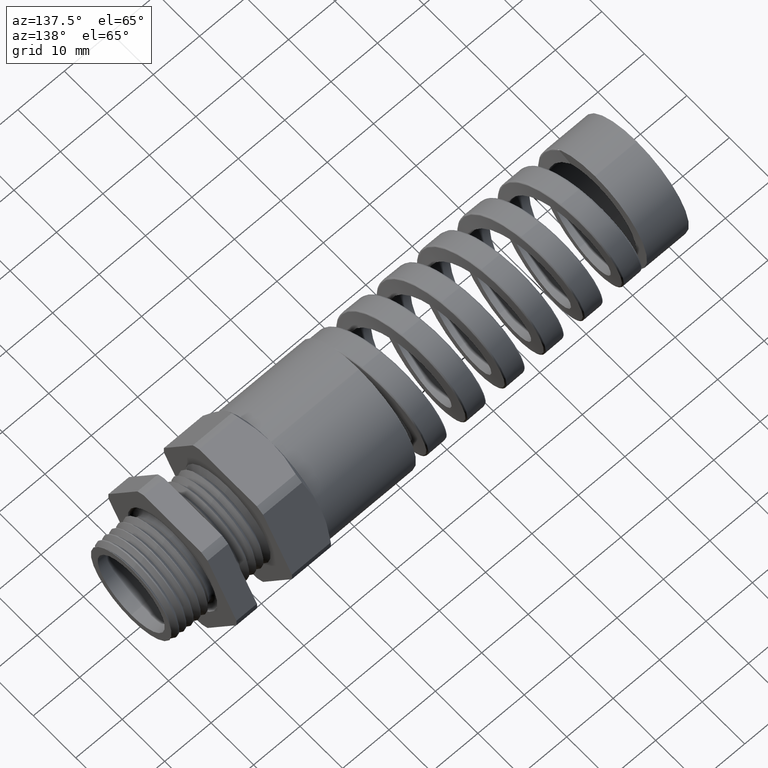
[diagram: clean part render]
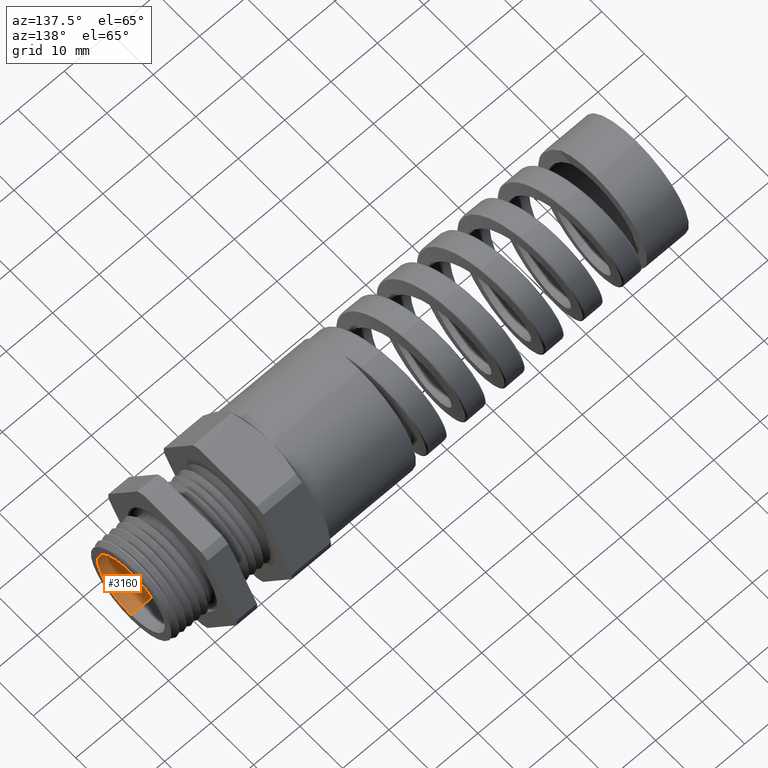
[diagram: same view with one face highlighted and labeled with its STEP entity id]
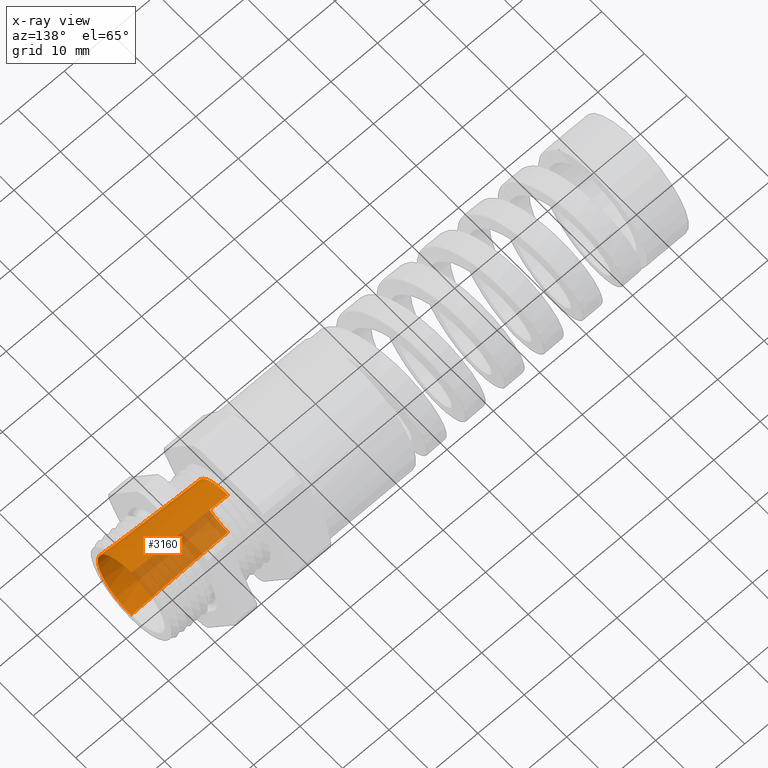
[diagram: x-ray of the same camera — body ghosted, the highlighted face saturated]
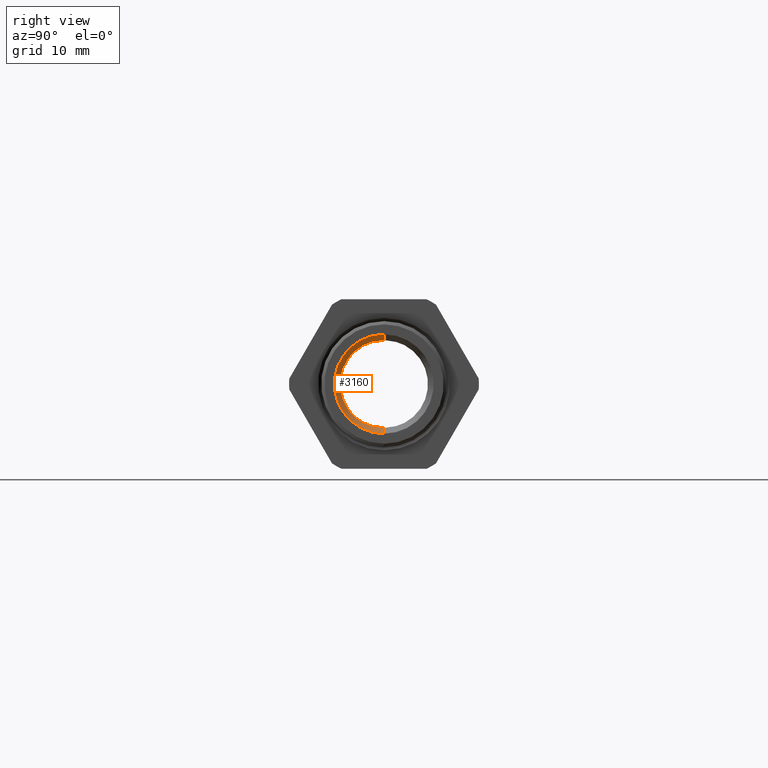
[diagram: same view with one face highlighted and labeled with its STEP entity id]
A machine part, auxiliary view. The second image highlights one B-rep face of the part: STEP entity #3160.
The next image is the same camera in x-ray: the body ghosted, the highlighted face saturated — about 36% of this face is hidden behind the body in this view.
A second angle (right view) of the same face is appended — the face is thin or edge-on in the first view.
In plain terms, the highlighted conical surface has half-angle 2.5 deg.
Its self-contained STEP definition (entity closure, byte-faithful):
#3160 = ADVANCED_FACE ( 'NONE', ( #11379 ), #11378, .F. ) ;
#3161 = EDGE_LOOP ( 'NONE', ( #3162, #3166, #3169, #3172 ) ) ;
#3162 = ORIENTED_EDGE ( 'NONE', *, *, #3163, .T. ) ;
#3163 = EDGE_CURVE ( 'NONE', #3164, #3165, #11377, .T. ) ;
#3164 = VERTEX_POINT ( 'NONE', #11368 ) ;
#3165 = VERTEX_POINT ( 'NONE', #11367 ) ;
#3166 = ORIENTED_EDGE ( 'NONE', *, *, #3167, .T. ) ;
#3167 = EDGE_CURVE ( 'NONE', #3165, #3168, #11366, .T. ) ;
#3168 = VERTEX_POINT ( 'NONE', #11362 ) ;
#3169 = ORIENTED_EDGE ( 'NONE', *, *, #3170, .F. ) ;
#3170 = EDGE_CURVE ( 'NONE', #3171, #3168, #11361, .T. ) ;
#3171 = VERTEX_POINT ( 'NONE', #11356 ) ;
#3172 = ORIENTED_EDGE ( 'NONE', *, *, #3173, .F. ) ;
#3173 = EDGE_CURVE ( 'NONE', #3164, #3171, #11355, .T. ) ;
#11352 = DIRECTION ( 'NONE',  ( 0.9990482215818576900, 0.0000000000000000000, -0.04361938736533626400 ) ) ;
#11353 = VECTOR ( 'NONE', #11352, 39.37007874015748100 ) ;
#11354 = CARTESIAN_POINT ( 'NONE',  ( -0.4708333333333332700, 0.0000000000000000000, -0.2750000000000000200 ) ) ;
#11355 = LINE ( 'NONE', #11354, #11353 ) ;
#11356 = CARTESIAN_POINT ( 'NONE',  ( 0.3499999999999998100, 0.0000000000000000000, -0.3108383573040705000 ) ) ;
#11357 = DIRECTION ( 'NONE',  ( 0.0000000000000000000, 0.0000000000000000000, 1.000000000000000000 ) ) ;
#11358 = DIRECTION ( 'NONE',  ( -1.000000000000000000, 0.0000000000000000000, 0.0000000000000000000 ) ) ;
#11359 = CARTESIAN_POINT ( 'NONE',  ( 0.3499999999999998100, 0.0000000000000000000, 0.0000000000000000000 ) ) ;
#11360 = AXIS2_PLACEMENT_3D ( 'NONE', #11359, #11358, #11357 ) ;
#11361 = CIRCLE ( 'NONE', #11360, 0.3108383573040705000 ) ;
#11362 = CARTESIAN_POINT ( 'NONE',  ( 0.3499999999999998100, 3.806671993246512500E-017, 0.3108383573040705000 ) ) ;
#11363 = DIRECTION ( 'NONE',  ( 0.9990482215818576900, 5.341834311772755600E-018, 0.04361938736533626400 ) ) ;
#11364 = VECTOR ( 'NONE', #11363, 39.37007874015748100 ) ;
#11365 = CARTESIAN_POINT ( 'NONE',  ( -0.4708333333333332700, 3.367778697655221300E-017, 0.2750000000000000200 ) ) ;
#11366 = LINE ( 'NONE', #11365, #11364 ) ;
#11367 = CARTESIAN_POINT ( 'NONE',  ( -0.4708333333333332700, 0.0000000000000000000, 0.2750000000000000200 ) ) ;
#11368 = CARTESIAN_POINT ( 'NONE',  ( -0.4708333333333332700, 3.367778697655221300E-017, -0.2750000000000000200 ) ) ;
#11369 = DIRECTION ( 'NONE',  ( 0.0000000000000000000, 0.0000000000000000000, 1.000000000000000000 ) ) ;
#11370 = DIRECTION ( 'NONE',  ( -1.000000000000000000, 0.0000000000000000000, 0.0000000000000000000 ) ) ;
#11371 = CARTESIAN_POINT ( 'NONE',  ( -0.4708333333333332700, 0.0000000000000000000, 0.0000000000000000000 ) ) ;
#11372 = AXIS2_PLACEMENT_3D ( 'NONE', #11371, #11370, #11369 ) ;
#11373 = DIRECTION ( 'NONE',  ( 0.0000000000000000000, 0.0000000000000000000, -1.000000000000000000 ) ) ;
#11374 = DIRECTION ( 'NONE',  ( 1.000000000000000000, 0.0000000000000000000, 0.0000000000000000000 ) ) ;
#11375 = CARTESIAN_POINT ( 'NONE',  ( -0.4708333333333332700, 0.0000000000000000000, 0.0000000000000000000 ) ) ;
#11376 = AXIS2_PLACEMENT_3D ( 'NONE', #11375, #11374, #11373 ) ;
#11377 = CIRCLE ( 'NONE', #11372, 0.2750000000000000200 ) ;
#11378 = CONICAL_SURFACE ( 'NONE', #11376, 0.2750000000000000200, 0.04363323129985850100 ) ;
#11379 = FACE_OUTER_BOUND ( 'NONE', #3161, .T. ) ;